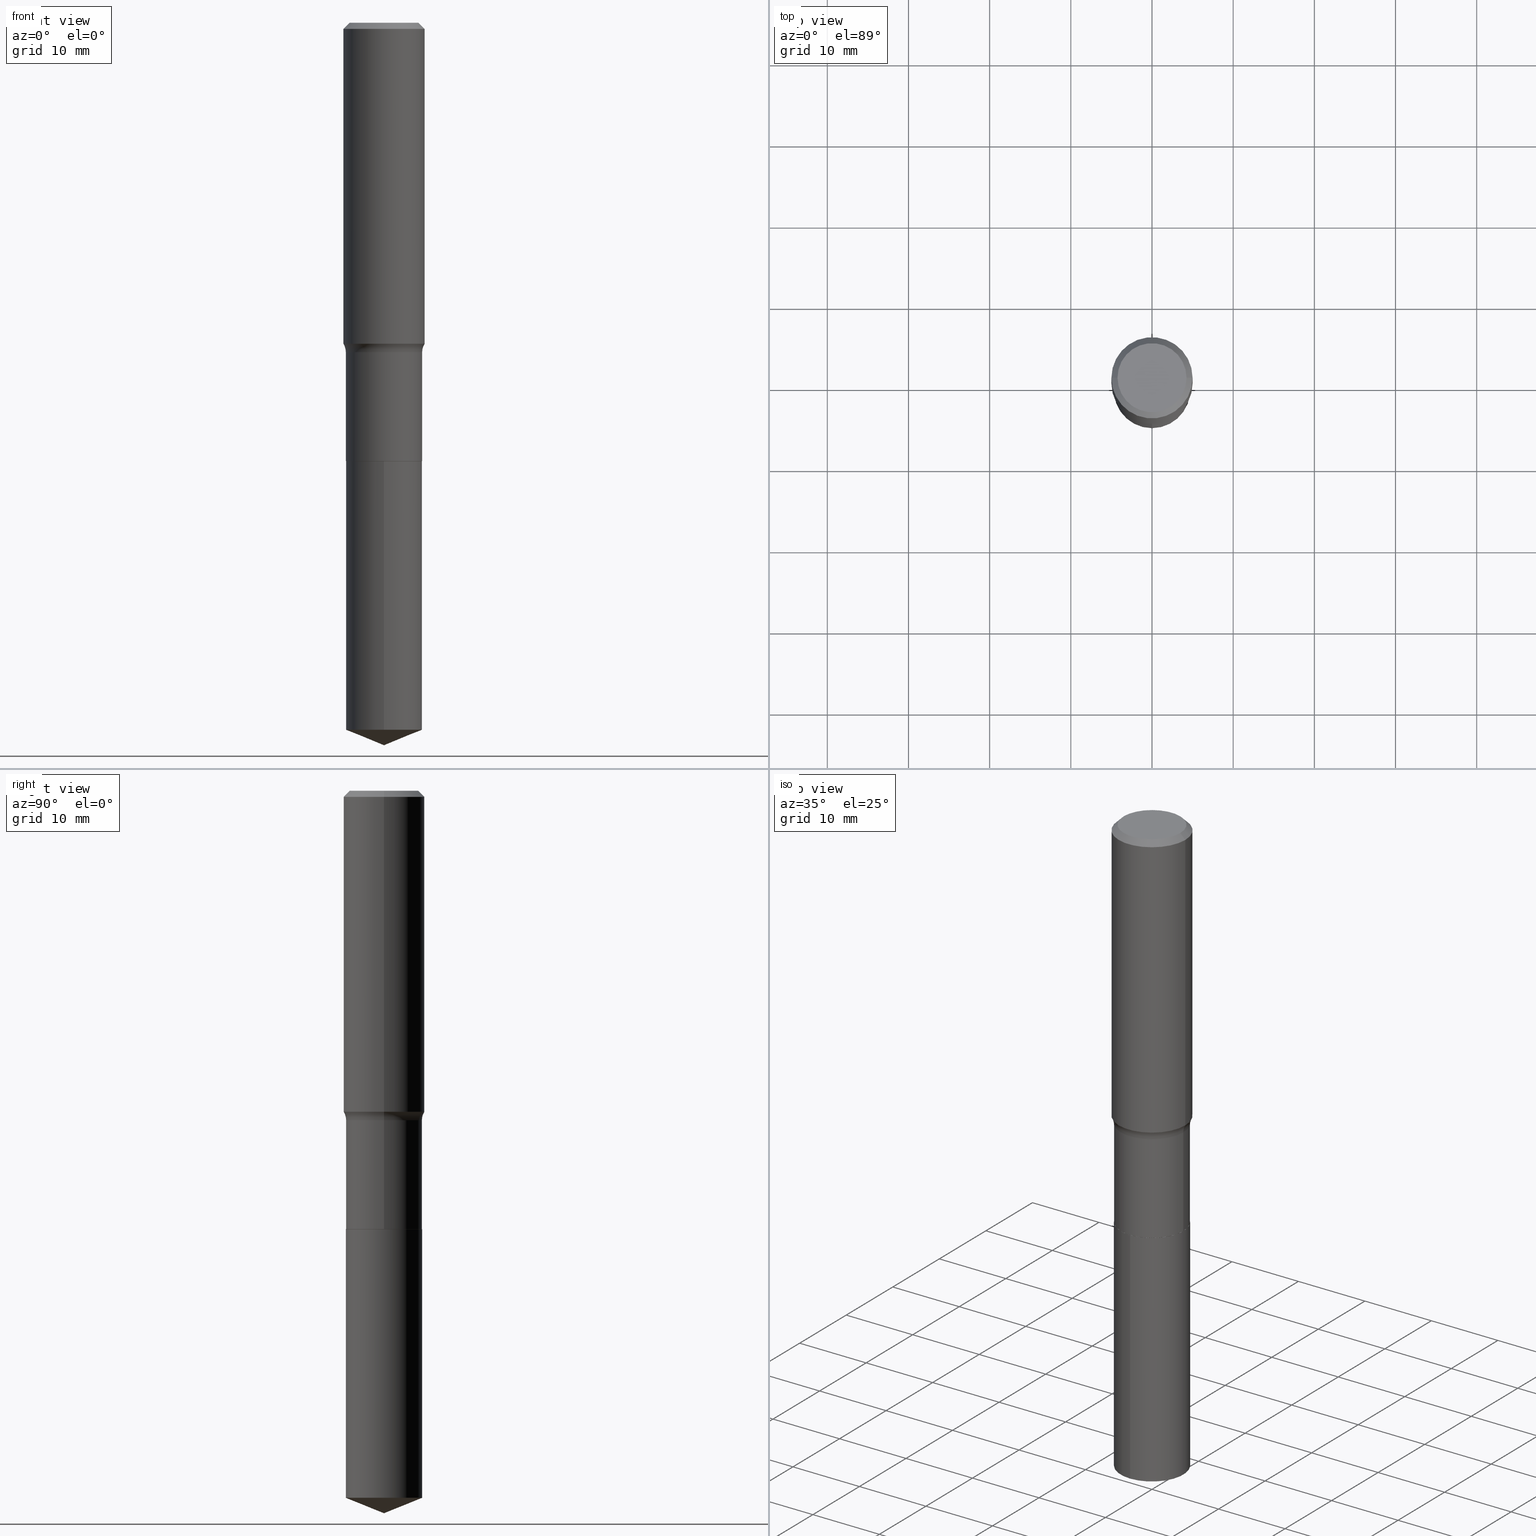
[diagram: canonical four-view strip — front | top / right | iso, engineering-drawing reading convention]
A machine part, canonical four-view strip (front | top / right | iso — engineering-drawing reading convention). The complete STEP part file that produces these views, byte-faithful:
ISO-10303-21;
HEADER;
FILE_DESCRIPTION (( 'STEP AP203' ),
    '1' );
FILE_NAME ('69184.STEP',
    '2024-04-19T17:20:25',
    ( '' ),
    ( '' ),
    'SwSTEP 2.0',
    'SolidWorks 2023',
    '' );
FILE_SCHEMA (( 'CONFIG_CONTROL_DESIGN' ));
ENDSEC;

DATA;
#1 = ORIENTED_EDGE ( 'NONE', *, *, #84, .F. ) ;
#2 = CIRCLE ( 'NONE', #366, 0.07799999999999999989 ) ;
#3 = CC_DESIGN_APPROVAL ( #16, ( #225 ) ) ;
#4 = CARTESIAN_POINT ( 'NONE',  ( 0.000000000000000000, 0.000000000000000000, 0.000000000000000000 ) ) ;
#5 = DIRECTION ( 'NONE',  ( -2.445468806185136597E-29, 3.491481338843145583E-15, 1.000000000000000000 ) ) ;
#6 = VERTEX_POINT ( 'NONE', #92 ) ;
#7 = CARTESIAN_POINT ( 'NONE',  ( 7.220858017463216492E-31, -1.030947152326917595E-16, -0.02952750000000022024 ) ) ;
#8 = CARTESIAN_POINT ( 'NONE',  ( 5.198822135068982087E-29, -7.422540178246643119E-15, -2.125899999999999679 ) ) ;
#9 = CIRCLE ( 'NONE', #337, 0.1968500000000000527 ) ;
#10 = AXIS2_PLACEMENT_3D ( 'NONE', #311, #161, #31 ) ;
#11 = LOCAL_TIME ( 13, 20, 25.00000000000000000, #17 ) ;
#12 = CYLINDRICAL_SURFACE ( 'NONE', #346, 0.1850499999999999368 ) ;
#13 = CARTESIAN_POINT ( 'NONE',  ( 8.385700175569454907E-29, -1.197296455644387141E-14, -3.429134946909204729 ) ) ;
#14 = DATE_AND_TIME ( #103, #110 ) ;
#15 = ORIENTED_EDGE ( 'NONE', *, *, #172, .T. ) ;
#16 = APPROVAL ( #290, 'UNSPECIFIED' ) ;
#17 = COORDINATED_UNIVERSAL_TIME_OFFSET ( 5, 0, .BEHIND. ) ;
#18 = CARTESIAN_POINT ( 'NONE',  ( -0.1850499999999999923, -5.185231476000217823E-15, -2.125399999999999956 ) ) ;
#19 = ADVANCED_FACE ( 'NONE', ( #420 ), #86, .T. ) ;
#20 = AXIS2_PLACEMENT_3D ( 'NONE', #317, #458, #88 ) ;
#21 = AXIS2_PLACEMENT_3D ( 'NONE', #385, #416, #32 ) ;
#22 = SHAPE_DEFINITION_REPRESENTATION ( #49, #30 ) ;
#23 = APPLICATION_CONTEXT ( 'configuration controlled 3d designs of mechanical parts and assemblies' ) ;
#24 = DIRECTION ( 'NONE',  ( -6.982962677686265133E-15, -1.000000000000000000, 3.498761904101797187E-15 ) ) ;
#25 = CARTESIAN_POINT ( 'NONE',  ( -5.008488096090108951E-47, 7.150793614331948590E-33, 2.048068690724054183E-18 ) ) ;
#26 = APPROVAL_DATE_TIME ( #214, #406 ) ;
#27 = DIRECTION ( 'NONE',  ( 6.982962677686265922E-15, 1.000000000000000000, -3.491637781037997457E-15 ) ) ;
#28 = AXIS2_PLACEMENT_3D ( 'NONE', #36, #347, #486 ) ;
#29 = FACE_OUTER_BOUND ( 'NONE', #467, .T. ) ;
#30 = ADVANCED_BREP_SHAPE_REPRESENTATION ( '69184', ( #315, #318, #476 ), #192 ) ;
#31 = DIRECTION ( 'NONE',  ( 1.000000000000000000, -6.982962677686265922E-15, 0.000000000000000000 ) ) ;
#32 = DIRECTION ( 'NONE',  ( 1.000000000000000000, -6.982962677686267499E-15, 4.876294436782262290E-29 ) ) ;
#33 = VECTOR ( 'NONE', #40, 39.37007874015748143 ) ;
#34 = DIRECTION ( 'NONE',  ( -6.982962677686265133E-15, -1.000000000000000000, 2.952551195530141356E-15 ) ) ;
#35 = ORIENTED_EDGE ( 'NONE', *, *, #485, .T. ) ;
#36 = CARTESIAN_POINT ( 'NONE',  ( 5.198822135068982087E-29, -7.422540178246643119E-15, -2.125899999999999679 ) ) ;
#37 = EDGE_CURVE ( 'NONE', #176, #419, #328, .T. ) ;
#38 = ORIENTED_EDGE ( 'NONE', *, *, #254, .T. ) ;
#39 = ADVANCED_FACE ( 'NONE', ( #430 ), #356, .T. ) ;
#40 = DIRECTION ( 'NONE',  ( -2.445468806185136877E-29, 3.491481338843145188E-15, 1.000000000000000000 ) ) ;
#41 = ORIENTED_EDGE ( 'NONE', *, *, #334, .T. ) ;
#42 = APPLICATION_PROTOCOL_DEFINITION ( 'international standard', 'config_control_design', 1994, #23 ) ;
#43 = DIRECTION ( 'NONE',  ( 1.000000000000000000, -6.982962677686265922E-15, 0.000000000000000000 ) ) ;
#44 = CONICAL_SURFACE ( 'NONE', #397, 0.1968500000000000527, 0.7853981633974456145 ) ;
#45 = CARTESIAN_POINT ( 'NONE',  ( 0.1968500000000001082, -1.374596203102542397E-15, 9.598753983154305062E-30 ) ) ;
#46 = EDGE_LOOP ( 'NONE', ( #124, #114 ) ) ;
#47 = VERTEX_POINT ( 'NONE', #167 ) ;
#48 = COORDINATED_UNIVERSAL_TIME_OFFSET ( 5, 0, .BEHIND. ) ;
#49 = PRODUCT_DEFINITION_SHAPE ( 'NONE', 'NONE',  #206 ) ;
#50 = ORIENTED_EDGE ( 'NONE', *, *, #239, .F. ) ;
#51 = APPROVAL_PERSON_ORGANIZATION ( #392, #149, #91 ) ;
#52 = DIRECTION ( 'NONE',  ( 1.000000000000000000, -6.982962677686265133E-15, 0.000000000000000000 ) ) ;
#53 = DIRECTION ( 'NONE',  ( 1.000000000000000000, -6.982962677686267499E-15, 4.876176775795935793E-29 ) ) ;
#54 = EDGE_CURVE ( 'NONE', #71, #198, #426, .T. ) ;
#55 = PERSON_AND_ORGANIZATION_ROLE ( 'creator' ) ;
#56 = FACE_OUTER_BOUND ( 'NONE', #196, .T. ) ;
#57 = SECURITY_CLASSIFICATION_LEVEL ( 'unclassified' ) ;
#58 = CARTESIAN_POINT ( 'NONE',  ( -0.1850499999999999090, -5.185231476000217823E-15, -1.597999999999999643 ) ) ;
#59 = CIRCLE ( 'NONE', #299, 0.1850499999999999090 ) ;
#60 = COORDINATED_UNIVERSAL_TIME_OFFSET ( 5, 0, .BEHIND. ) ;
#61 = CARTESIAN_POINT ( 'NONE',  ( 5.198822135068982087E-29, -7.422540178246643119E-15, -2.125899999999999679 ) ) ;
#62 = DATE_AND_TIME ( #471, #11 ) ;
#63 = DIRECTION ( 'NONE',  ( -6.982962677686265133E-15, -1.000000000000000000, 2.952551195530141356E-15 ) ) ;
#64 = APPROVAL_DATE_TIME ( #14, #16 ) ;
#65 = LINE ( 'NONE', #223, #289 ) ;
#66 = VECTOR ( 'NONE', #338, 39.37007874015748143 ) ;
#67 = AXIS2_PLACEMENT_3D ( 'NONE', #236, #480, #72 ) ;
#68 = CYLINDRICAL_SURFACE ( 'NONE', #216, 0.1968500000000001082 ) ;
#69 = VERTEX_POINT ( 'NONE', #281 ) ;
#70 = CARTESIAN_POINT ( 'NONE',  ( 5.197599400665889285E-29, -7.420794437577220826E-15, -2.125399999999999956 ) ) ;
#71 = VERTEX_POINT ( 'NONE', #246 ) ;
#72 = DIRECTION ( 'NONE',  ( 1.000000000000000000, -6.982962677686267499E-15, 0.000000000000000000 ) ) ;
#73 = ORIENTED_EDGE ( 'NONE', *, *, #259, .T. ) ;
#74 = AXIS2_PLACEMENT_3D ( 'NONE', #263, #407, #24 ) ;
#75 = CC_DESIGN_PERSON_AND_ORGANIZATION_ASSIGNMENT ( #170, #245, ( #107 ) ) ;
#76 = CIRCLE ( 'NONE', #321, 0.1850499999999999923 ) ;
#77 = DIRECTION ( 'NONE',  ( 1.000000000000000000, -6.982962677686266711E-15, 4.876176775795935793E-29 ) ) ;
#78 = LOCAL_TIME ( 13, 20, 25.00000000000000000, #60 ) ;
#79 = EDGE_LOOP ( 'NONE', ( #284, #448, #360, #1 ) ) ;
#80 = PERSON ( 'UNSPECIFIED', 'UNSPECIFIED', 'UNSPECIFIED', ('UNSPECIFIED'), ('UNSPECIFIED'), ('UNSPECIFIED') ) ;
#81 = EDGE_CURVE ( 'NONE', #386, #69, #441, .T. ) ;
#82 = CARTESIAN_POINT ( 'NONE',  ( 0.1673224999999999851, -1.300749711163072594E-15, 4.096137381456741925E-18 ) ) ;
#83 = ORIENTED_EDGE ( 'NONE', *, *, #291, .F. ) ;
#84 = EDGE_CURVE ( 'NONE', #69, #386, #9, .T. ) ;
#85 = DIRECTION ( 'NONE',  ( -2.445468806185136597E-29, 3.491481338843145583E-15, 1.000000000000000000 ) ) ;
#86 = CONICAL_SURFACE ( 'NONE', #274, 0.1845499999999999363, 0.7853981633975849475 ) ;
#87 = TOROIDAL_SURFACE ( 'NONE', #243, 0.2630499999999998950, 0.07800000000000002764 ) ;
#88 = DIRECTION ( 'NONE',  ( 1.000000000000000000, -6.982962677686266711E-15, 0.000000000000000000 ) ) ;
#89 = LOCAL_TIME ( 13, 20, 25.00000000000000000, #144 ) ;
#90 = DIRECTION ( 'NONE',  ( -0.7071067811866441621, 7.493145998870704414E-15, 0.7071067811864508723 ) ) ;
#91 = APPROVAL_ROLE ( '' ) ;
#92 = CARTESIAN_POINT ( 'NONE',  ( 0.1968500000000002470, -6.809959883149110592E-15, -1.556750030303040599 ) ) ;
#93 = CARTESIAN_POINT ( 'NONE',  ( 0.1845499999999999363, -8.711245940413642018E-15, -2.125899999999999679 ) ) ;
#94 = EDGE_LOOP ( 'NONE', ( #312, #209, #229, #450 ) ) ;
#95 = ADVANCED_FACE ( 'NONE', ( #205 ), #358, .T. ) ;
#96 = CONICAL_SURFACE ( 'NONE', #436, 0.1968500000000000527, 0.7853981633974456145 ) ;
#97 = ADVANCED_FACE ( 'NONE', ( #402 ), #479, .F. ) ;
#98 = DIRECTION ( 'NONE',  ( -2.445468806185136597E-29, 3.491481338843145583E-15, 1.000000000000000000 ) ) ;
#99 = APPLICATION_CONTEXT ( 'configuration controlled 3d designs of mechanical parts and assemblies' ) ;
#100 = CALENDAR_DATE ( 2024, 19, 4 ) ;
#101 = DIRECTION ( 'NONE',  ( -6.982962677686265133E-15, -1.000000000000000000, 3.498761904101797187E-15 ) ) ;
#102 = FACE_OUTER_BOUND ( 'NONE', #379, .T. ) ;
#103 = CALENDAR_DATE ( 2024, 19, 4 ) ;
#104 = FACE_OUTER_BOUND ( 'NONE', #387, .T. ) ;
#105 = PERSON_AND_ORGANIZATION ( #80, #275 ) ;
#106 = DIRECTION ( 'NONE',  ( -2.445359563184350382E-29, 3.491637781037997062E-15, 1.000000000000000000 ) ) ;
#107 = PRODUCT ( '69184', '69184', '', ( #355 ) ) ;
#108 = EDGE_CURVE ( 'NONE', #279, #345, #365, .T. ) ;
#109 = AXIS2_PLACEMENT_3D ( 'NONE', #188, #106, #340 ) ;
#110 = LOCAL_TIME ( 13, 20, 25.00000000000000000, #473 ) ;
#111 = CARTESIAN_POINT ( 'NONE',  ( 8.568295373441645346E-29, -1.223434962097903768E-14, -3.503899999999999793 ) ) ;
#112 = EDGE_LOOP ( 'NONE', ( #487, #152, #165 ) ) ;
#113 = FACE_OUTER_BOUND ( 'NONE', #413, .T. ) ;
#114 = ORIENTED_EDGE ( 'NONE', *, *, #108, .T. ) ;
#115 = ADVANCED_FACE ( 'NONE', ( #400 ), #282, .F. ) ;
#116 = CC_DESIGN_DATE_AND_TIME_ASSIGNMENT ( #477, #335, ( #206 ) ) ;
#117 = CARTESIAN_POINT ( 'NONE',  ( 8.568763925768371562E-29, -1.223368446005496745E-14, -3.503899999999999793 ) ) ;
#118 = ORIENTED_EDGE ( 'NONE', *, *, #422, .F. ) ;
#119 = ADVANCED_FACE ( 'NONE', ( #56 ), #433, .F. ) ;
#120 = AXIS2_PLACEMENT_3D ( 'NONE', #256, #98, #333 ) ;
#121 = DESIGN_CONTEXT ( 'detailed design', #99, 'design' ) ;
#122 = AXIS2_PLACEMENT_3D ( 'NONE', #449, #207, #457 ) ;
#123 = DIRECTION ( 'NONE',  ( 6.588037525764799179E-15, 0.9271838545667900888, 0.3746065934159051869 ) ) ;
#124 = ORIENTED_EDGE ( 'NONE', *, *, #271, .T. ) ;
#125 = ADVANCED_FACE ( 'NONE', ( #183 ), #297, .T. ) ;
#126 = DIRECTION ( 'NONE',  ( 0.7071067811865454633, -7.319954787623246579E-15, -0.7071067811865493491 ) ) ;
#127 = VERTEX_POINT ( 'NONE', #58 ) ;
#128 = DIRECTION ( 'NONE',  ( 1.000000000000000000, -6.982962677686265133E-15, 0.000000000000000000 ) ) ;
#129 = EDGE_LOOP ( 'NONE', ( #134, #415, #160, #452 ) ) ;
#130 = AXIS2_PLACEMENT_3D ( 'NONE', #478, #215, #101 ) ;
#131 = DIRECTION ( 'NONE',  ( 0.7071067811866441621, -2.468850131083269169E-15, 0.7071067811864508723 ) ) ;
#132 = ORIENTED_EDGE ( 'NONE', *, *, #422, .T. ) ;
#133 = CARTESIAN_POINT ( 'NONE',  ( -1.292197243505759076E-15, -0.1850500000000119827, -3.429134946909204285 ) ) ;
#134 = ORIENTED_EDGE ( 'NONE', *, *, #259, .F. ) ;
#135 = EDGE_CURVE ( 'NONE', #428, #6, #146, .T. ) ;
#136 = APPLICATION_PROTOCOL_DEFINITION ( 'international standard', 'config_control_design', 1994, #99 ) ;
#137 = ORIENTED_EDGE ( 'NONE', *, *, #173, .T. ) ;
#138 = ORIENTED_EDGE ( 'NONE', *, *, #331, .T. ) ;
#139 = CIRCLE ( 'NONE', #164, 0.07799999999999999989 ) ;
#140 = AXIS2_PLACEMENT_3D ( 'NONE', #411, #351, #265 ) ;
#141 = DIRECTION ( 'NONE',  ( 1.000000000000000000, -6.982962677686265922E-15, 0.000000000000000000 ) ) ;
#142 = APPROVAL_DATE_TIME ( #217, #149 ) ;
#143 = CARTESIAN_POINT ( 'NONE',  ( -0.1850499999999999368, 1.314859332524064945E-15, -9.102489384516700747E-30 ) ) ;
#144 = COORDINATED_UNIVERSAL_TIME_OFFSET ( 5, 0, .BEHIND. ) ;
#145 = LINE ( 'NONE', #298, #242 ) ;
#146 = CIRCLE ( 'NONE', #491, 0.1968500000000002192 ) ;
#147 = VECTOR ( 'NONE', #166, 39.37007874015748143 ) ;
#148 = FACE_OUTER_BOUND ( 'NONE', #231, .T. ) ;
#149 = APPROVAL ( #322, 'UNSPECIFIED' ) ;
#150 = CARTESIAN_POINT ( 'NONE',  ( -1.292197243505791420E-15, -0.1850500000000074030, -2.125899999999999235 ) ) ;
#151 = DIRECTION ( 'NONE',  ( 7.105427357601001859E-15, 1.000000000000000000, -3.491481338843145583E-15 ) ) ;
#152 = ORIENTED_EDGE ( 'NONE', *, *, #332, .T. ) ;
#153 = AXIS2_PLACEMENT_3D ( 'NONE', #8, #253, #63 ) ;
#154 = CONICAL_SURFACE ( 'NONE', #122, 0.1845499999999999363, 0.7853981633975849475 ) ;
#155 = DIMENSIONAL_EXPONENTS ( 1.000000000000000000, 0.000000000000000000, 0.000000000000000000, 0.000000000000000000, 0.000000000000000000, 0.000000000000000000, 0.000000000000000000 ) ;
#156 = ADVANCED_FACE ( 'NONE', ( #29 ), #344, .T. ) ;
#157 = DIRECTION ( 'NONE',  ( 1.000000000000000000, -6.982962677686265922E-15, 0.000000000000000000 ) ) ;
#158 = ORIENTED_EDGE ( 'NONE', *, *, #135, .F. ) ;
#159 = FACE_OUTER_BOUND ( 'NONE', #175, .T. ) ;
#160 = ORIENTED_EDGE ( 'NONE', *, *, #220, .T. ) ;
#161 = DIRECTION ( 'NONE',  ( -2.445468806185136597E-29, 3.491481338843145583E-15, 1.000000000000000000 ) ) ;
#162 = ORIENTED_EDGE ( 'NONE', *, *, #375, .T. ) ;
#163 = AXIS2_PLACEMENT_3D ( 'NONE', #61, #370, #27 ) ;
#164 = AXIS2_PLACEMENT_3D ( 'NONE', #293, #439, #372 ) ;
#165 = ORIENTED_EDGE ( 'NONE', *, *, #37, .F. ) ;
#166 = DIRECTION ( 'NONE',  ( -2.445468806185136877E-29, 3.491481338843145188E-15, 1.000000000000000000 ) ) ;
#167 = CARTESIAN_POINT ( 'NONE',  ( 1.314859332524149156E-15, 0.1850499999999925815, -2.125900000000000567 ) ) ;
#168 = DIRECTION ( 'NONE',  ( 0.000000000000000000, 0.000000000000000000, 1.000000000000000000 ) ) ;
#169 = ORIENTED_EDGE ( 'NONE', *, *, #438, .F. ) ;
#170 = PERSON_AND_ORGANIZATION ( #80, #275 ) ;
#171 = ORIENTED_EDGE ( 'NONE', *, *, #454, .T. ) ;
#172 = EDGE_CURVE ( 'NONE', #419, #350, #65, .T. ) ;
#173 = EDGE_CURVE ( 'NONE', #198, #127, #474, .T. ) ;
#174 = DIRECTION ( 'NONE',  ( -2.445468806185136597E-29, 3.491481338843145583E-15, 1.000000000000000000 ) ) ;
#175 = EDGE_LOOP ( 'NONE', ( #314, #456, #83, #118 ) ) ;
#176 = VERTEX_POINT ( 'NONE', #294 ) ;
#177 = PERSON_AND_ORGANIZATION ( #80, #275 ) ;
#178 = CARTESIAN_POINT ( 'NONE',  ( 7.220858017463216492E-31, -1.030947152326917595E-16, -0.02952750000000022024 ) ) ;
#179 = AXIS2_PLACEMENT_3D ( 'NONE', #483, #440, #189 ) ;
#180 = SECURITY_CLASSIFICATION ( '', '', #57 ) ;
#181 = DIRECTION ( 'NONE',  ( -2.445359563184350382E-29, 3.491637781037997457E-15, 1.000000000000000000 ) ) ;
#182 = PLANE ( 'NONE',  #353 ) ;
#183 = FACE_OUTER_BOUND ( 'NONE', #112, .T. ) ;
#184 = CC_DESIGN_PERSON_AND_ORGANIZATION_ASSIGNMENT ( #177, #55, ( #225 ) ) ;
#185 = LOCAL_TIME ( 13, 20, 25.00000000000000000, #48 ) ;
#186 = CC_DESIGN_DATE_AND_TIME_ASSIGNMENT ( #62, #260, ( #180 ) ) ;
#187 = ADVANCED_FACE ( 'NONE', ( #148 ), #182, .F. ) ;
#188 = CARTESIAN_POINT ( 'NONE',  ( 5.198822135068982087E-29, -7.422540178246643119E-15, -2.125899999999999679 ) ) ;
#189 = DIRECTION ( 'NONE',  ( -6.982962677686265133E-15, -1.000000000000000000, 2.952551195530141356E-15 ) ) ;
#190 = ORIENTED_EDGE ( 'NONE', *, *, #84, .T. ) ;
#191 = DIRECTION ( 'NONE',  ( -2.445468806185136597E-29, 3.491481338843145583E-15, 1.000000000000000000 ) ) ;
#192 =( GEOMETRIC_REPRESENTATION_CONTEXT ( 3 ) GLOBAL_UNCERTAINTY_ASSIGNED_CONTEXT ( ( #404 ) ) GLOBAL_UNIT_ASSIGNED_CONTEXT ( ( #490, #427, #459 ) ) REPRESENTATION_CONTEXT ( 'NONE', 'WORKASPACE' ) );
#193 = CARTESIAN_POINT ( 'NONE',  ( 0.1968500000000000527, -1.477690918335233688E-15, -0.02952750000000022024 ) ) ;
#194 = ORIENTED_EDGE ( 'NONE', *, *, #332, .F. ) ;
#195 = LINE ( 'NONE', #111, #462 ) ;
#196 = EDGE_LOOP ( 'NONE', ( #138, #251 ) ) ;
#197 = CARTESIAN_POINT ( 'NONE',  ( 5.198822135068982087E-29, -7.422540178246643119E-15, -2.125899999999999679 ) ) ;
#198 = VERTEX_POINT ( 'NONE', #18 ) ;
#199 = CC_DESIGN_PERSON_AND_ORGANIZATION_ASSIGNMENT ( #329, #212, ( #206 ) ) ;
#200 = CIRCLE ( 'NONE', #469, 0.1850499999999999090 ) ;
#201 = CARTESIAN_POINT ( 'NONE',  ( 0.1850499999999999090, -6.871584422977188194E-15, -1.597999999999999643 ) ) ;
#202 = DIRECTION ( 'NONE',  ( -6.982962677686265133E-15, -1.000000000000000000, 2.952551195530141356E-15 ) ) ;
#203 = ORIENTED_EDGE ( 'NONE', *, *, #54, .F. ) ;
#204 = LINE ( 'NONE', #93, #453 ) ;
#205 = FACE_OUTER_BOUND ( 'NONE', #342, .T. ) ;
#206 = PRODUCT_DEFINITION ( 'UNKNOWN', '', #225, #121 ) ;
#207 = DIRECTION ( 'NONE',  ( -2.445468806185136597E-29, 3.491481338843145583E-15, 1.000000000000000000 ) ) ;
#208 = CIRCLE ( 'NONE', #482, 0.1968500000000002192 ) ;
#209 = ORIENTED_EDGE ( 'NONE', *, *, #367, .T. ) ;
#210 = CARTESIAN_POINT ( 'NONE',  ( 3.907859152283848022E-29, -5.579387179471346287E-15, -1.597999999999999643 ) ) ;
#211 = ORIENTED_EDGE ( 'NONE', *, *, #331, .F. ) ;
#212 = PERSON_AND_ORGANIZATION_ROLE ( 'creator' ) ;
#213 = CARTESIAN_POINT ( 'NONE',  ( 3.806983638133851740E-29, -5.435363680046567406E-15, -1.556750030303040599 ) ) ;
#214 = DATE_AND_TIME ( #262, #89 ) ;
#215 = DIRECTION ( 'NONE',  ( -2.445359563184350382E-29, 3.491637781037997062E-15, 1.000000000000000000 ) ) ;
#216 = AXIS2_PLACEMENT_3D ( 'NONE', #377, #191, #77 ) ;
#217 = DATE_AND_TIME ( #100, #185 ) ;
#218 = DIRECTION ( 'NONE',  ( -1.000000000000000000, 6.982962677686266711E-15, 0.000000000000000000 ) ) ;
#219 = APPROVAL_STATUS ( 'not_yet_approved' ) ;
#220 = EDGE_CURVE ( 'NONE', #6, #481, #139, .T. ) ;
#221 = DIRECTION ( 'NONE',  ( 2.438088387897960049E-29, -3.491481338843145188E-15, -1.000000000000000000 ) ) ;
#222 = EDGE_CURVE ( 'NONE', #47, #350, #425, .T. ) ;
#223 = CARTESIAN_POINT ( 'NONE',  ( -1.292197243505791420E-15, -0.1850500000000074030, -2.125899999999999235 ) ) ;
#224 = CIRCLE ( 'NONE', #21, 0.1673224999999999851 ) ;
#225 = PRODUCT_DEFINITION_FORMATION_WITH_SPECIFIED_SOURCE ( 'ANY', '', #107, .NOT_KNOWN. ) ;
#226 = CYLINDRICAL_SURFACE ( 'NONE', #313, 0.1850499999999999923 ) ;
#227 = VERTEX_POINT ( 'NONE', #292 ) ;
#228 = DIRECTION ( 'NONE',  ( -2.445468806185136597E-29, 3.491481338843145583E-15, 1.000000000000000000 ) ) ;
#229 = ORIENTED_EDGE ( 'NONE', *, *, #81, .F. ) ;
#230 = DIRECTION ( 'NONE',  ( 1.000000000000000000, -6.982962677686267499E-15, 0.000000000000000000 ) ) ;
#231 = EDGE_LOOP ( 'NONE', ( #395, #320 ) ) ;
#232 = VECTOR ( 'NONE', #303, 39.37007874015748143 ) ;
#233 = CARTESIAN_POINT ( 'NONE',  ( 3.806983638133851740E-29, -5.435363680046567406E-15, -1.556750030303040599 ) ) ;
#234 = ADVANCED_FACE ( 'NONE', ( #102 ), #96, .T. ) ;
#235 = VERTEX_POINT ( 'NONE', #330 ) ;
#236 = CARTESIAN_POINT ( 'NONE',  ( 5.197599400665889285E-29, -7.420794437577220826E-15, -2.125399999999999956 ) ) ;
#237 = EDGE_CURVE ( 'NONE', #345, #69, #434, .T. ) ;
#238 = ORIENTED_EDGE ( 'NONE', *, *, #485, .F. ) ;
#239 = EDGE_CURVE ( 'NONE', #176, #47, #145, .T. ) ;
#240 = EDGE_LOOP ( 'NONE', ( #354, #137, #169, #489 ) ) ;
#241 = ADVANCED_FACE ( 'NONE', ( #104 ), #226, .T. ) ;
#242 = VECTOR ( 'NONE', #437, 39.37007874015748143 ) ;
#243 = AXIS2_PLACEMENT_3D ( 'NONE', #414, #382, #302 ) ;
#244 = CARTESIAN_POINT ( 'NONE',  ( 0.000000000000000000, 0.000000000000000000, 0.000000000000000000 ) ) ;
#245 = PERSON_AND_ORGANIZATION_ROLE ( 'design_owner' ) ;
#246 = CARTESIAN_POINT ( 'NONE',  ( -0.1845499999999999363, -6.108584332227267083E-15, -2.125899999999999679 ) ) ;
#247 = LINE ( 'NONE', #423, #266 ) ;
#248 = CARTESIAN_POINT ( 'NONE',  ( 7.220858017463216492E-31, -1.030947152326917595E-16, -0.02952750000000022024 ) ) ;
#249 = FACE_OUTER_BOUND ( 'NONE', #240, .T. ) ;
#250 = AXIS2_PLACEMENT_3D ( 'NONE', #408, #269, #34 ) ;
#251 = ORIENTED_EDGE ( 'NONE', *, *, #222, .T. ) ;
#252 = APPROVAL_PERSON_ORGANIZATION ( #466, #406, #432 ) ;
#253 = DIRECTION ( 'NONE',  ( -2.445359563184350382E-29, 3.491637781037997062E-15, 1.000000000000000000 ) ) ;
#254 = EDGE_CURVE ( 'NONE', #446, #481, #341, .T. ) ;
#255 = PERSON_AND_ORGANIZATION_ROLE ( 'design_supplier' ) ;
#256 = CARTESIAN_POINT ( 'NONE',  ( -1.001697619218021790E-46, 1.430158722866389718E-32, 4.096137381448108366E-18 ) ) ;
#257 = DIRECTION ( 'NONE',  ( 2.445468806185136597E-29, -3.491481338843145583E-15, -1.000000000000000000 ) ) ;
#258 = VECTOR ( 'NONE', #336, 39.37007874015748854 ) ;
#259 = EDGE_CURVE ( 'NONE', #428, #127, #2, .T. ) ;
#260 = DATE_TIME_ROLE ( 'classification_date' ) ;
#261 = DIRECTION ( 'NONE',  ( -2.445468806185136597E-29, 3.491481338843145583E-15, 1.000000000000000000 ) ) ;
#262 = CALENDAR_DATE ( 2024, 19, 4 ) ;
#263 = CARTESIAN_POINT ( 'NONE',  ( -8.770547093742795597E-28, 1.252320373310577024E-13, 35.86617874015747987 ) ) ;
#264 = EDGE_CURVE ( 'NONE', #227, #176, #276, .T. ) ;
#265 = DIRECTION ( 'NONE',  ( 1.000000000000000000, -6.982962677686266711E-15, 4.876176775795935793E-29 ) ) ;
#266 = VECTOR ( 'NONE', #126, 39.37007874015748854 ) ;
#267 = DIRECTION ( 'NONE',  ( -6.474490251793185729E-15, -0.9271838545667875353, 0.3746065934159116817 ) ) ;
#268 = ORIENTED_EDGE ( 'NONE', *, *, #220, .F. ) ;
#269 = DIRECTION ( 'NONE',  ( -2.445359563184350382E-29, 3.491637781037997062E-15, 1.000000000000000000 ) ) ;
#270 = ORIENTED_EDGE ( 'NONE', *, *, #239, .T. ) ;
#271 = EDGE_CURVE ( 'NONE', #345, #279, #224, .T. ) ;
#272 = DIRECTION ( 'NONE',  ( -2.445359563184350382E-29, 3.491637781037997062E-15, 1.000000000000000000 ) ) ;
#273 = ORIENTED_EDGE ( 'NONE', *, *, #264, .T. ) ;
#274 = AXIS2_PLACEMENT_3D ( 'NONE', #399, #85, #43 ) ;
#275 = ORGANIZATION ( 'UNSPECIFIED', 'UNSPECIFIED', '' ) ;
#276 = LINE ( 'NONE', #117, #383 ) ;
#277 = ADVANCED_FACE ( 'NONE', ( #378 ), #68, .T. ) ;
#278 = EDGE_LOOP ( 'NONE', ( #304, #460, #348, #190 ) ) ;
#279 = VERTEX_POINT ( 'NONE', #82 ) ;
#280 = DIRECTION ( 'NONE',  ( -1.000000000000000000, 6.982962677686266711E-15, 0.000000000000000000 ) ) ;
#281 = CARTESIAN_POINT ( 'NONE',  ( -0.1968500000000000527, -1.370525822295871364E-15, -0.02952750000000022024 ) ) ;
#282 = TOROIDAL_SURFACE ( 'NONE', #396, 0.2630499999999998950, 0.07800000000000002764 ) ;
#283 = DIRECTION ( 'NONE',  ( 1.000000000000000000, -6.982962677686267499E-15, 4.876176775795935793E-29 ) ) ;
#284 = ORIENTED_EDGE ( 'NONE', *, *, #367, .F. ) ;
#285 = DIRECTION ( 'NONE',  ( -2.445468806185136597E-29, 3.491481338843145583E-15, 1.000000000000000000 ) ) ;
#286 = ORIENTED_EDGE ( 'NONE', *, *, #237, .F. ) ;
#287 = CARTESIAN_POINT ( 'NONE',  ( -0.1968500000000002470, -4.036660304702808830E-15, -1.556750030303040599 ) ) ;
#288 = EDGE_LOOP ( 'NONE', ( #203, #41, #132, #307 ) ) ;
#289 = VECTOR ( 'NONE', #181, 39.37007874015748143 ) ;
#290 = APPROVAL_STATUS ( 'not_yet_approved' ) ;
#291 = EDGE_CURVE ( 'NONE', #446, #198, #389, .T. ) ;
#292 = CARTESIAN_POINT ( 'NONE',  ( 8.568295373441645346E-29, -1.223434962097903768E-14, -3.503899999999999793 ) ) ;
#293 = CARTESIAN_POINT ( 'NONE',  ( 0.2630499999999998950, -7.416255511836717817E-15, -1.597999999999999643 ) ) ;
#294 = CARTESIAN_POINT ( 'NONE',  ( 1.314859332524148958E-15, 0.1850499999999879741, -3.429134946909205173 ) ) ;
#295 = CC_DESIGN_PERSON_AND_ORGANIZATION_ASSIGNMENT ( #105, #296, ( #180 ) ) ;
#296 = PERSON_AND_ORGANIZATION_ROLE ( 'classification_officer' ) ;
#297 = CONICAL_SURFACE ( 'NONE', #74, 97.44436430772927338, 1.186823891356147964 ) ;
#298 = CARTESIAN_POINT ( 'NONE',  ( 1.314859332524117009E-15, 0.1850499999999925815, -2.125900000000000567 ) ) ;
#299 = AXIS2_PLACEMENT_3D ( 'NONE', #210, #285, #128 ) ;
#300 = APPROVAL_ROLE ( '' ) ;
#301 = CARTESIAN_POINT ( 'NONE',  ( 5.198822135068982087E-29, -7.422540178246643119E-15, -2.125899999999999679 ) ) ;
#302 = DIRECTION ( 'NONE',  ( 1.000000000000000000, -6.982962677686267499E-15, 4.883557194083114022E-29 ) ) ;
#303 = DIRECTION ( 'NONE',  ( -2.445468806185136877E-29, 3.491481338843145188E-15, 1.000000000000000000 ) ) ;
#304 = ORIENTED_EDGE ( 'NONE', *, *, #454, .F. ) ;
#305 = CIRCLE ( 'NONE', #179, 0.1850499999999999923 ) ;
#306 = CARTESIAN_POINT ( 'NONE',  ( -0.1968500000000001082, 1.398703375343757985E-15, -9.682923725166787881E-30 ) ) ;
#307 = ORIENTED_EDGE ( 'NONE', *, *, #375, .F. ) ;
#308 = LINE ( 'NONE', #306, #232 ) ;
#309 = ORIENTED_EDGE ( 'NONE', *, *, #108, .F. ) ;
#310 = ADVANCED_FACE ( 'NONE', ( #443 ), #343, .T. ) ;
#311 = CARTESIAN_POINT ( 'NONE',  ( 5.198822135068982087E-29, -7.422540178246643119E-15, -2.125899999999999679 ) ) ;
#312 = ORIENTED_EDGE ( 'NONE', *, *, #361, .T. ) ;
#313 = AXIS2_PLACEMENT_3D ( 'NONE', #197, #272, #418 ) ;
#314 = ORIENTED_EDGE ( 'NONE', *, *, #410, .T. ) ;
#315 = MANIFOLD_SOLID_BREP ( 'Body-Move/Copy2[1]', #461 ) ;
#316 = DIRECTION ( 'NONE',  ( 2.445468806185136597E-29, -3.491481338843145583E-15, -1.000000000000000000 ) ) ;
#317 = CARTESIAN_POINT ( 'NONE',  ( 7.220858017463216492E-31, -1.030947152326917595E-16, -0.02952750000000022024 ) ) ;
#318 = MANIFOLD_SOLID_BREP ( 'Body-Move/Copy2[2]', #468 ) ;
#319 = DIRECTION ( 'NONE',  ( 1.000000000000000000, 0.000000000000000000, 0.000000000000000000 ) ) ;
#320 = ORIENTED_EDGE ( 'NONE', *, *, #334, .F. ) ;
#321 = AXIS2_PLACEMENT_3D ( 'NONE', #70, #228, #230 ) ;
#322 = APPROVAL_STATUS ( 'not_yet_approved' ) ;
#323 = ORIENTED_EDGE ( 'NONE', *, *, #381, .F. ) ;
#324 = LINE ( 'NONE', #45, #147 ) ;
#325 = DIRECTION ( 'NONE',  ( -2.445359563184350382E-29, 3.491637781037997062E-15, 1.000000000000000000 ) ) ;
#326 = PERSON_AND_ORGANIZATION ( #80, #275 ) ;
#327 = ORIENTED_EDGE ( 'NONE', *, *, #172, .F. ) ;
#328 = CIRCLE ( 'NONE', #388, 0.1850499999999999923 ) ;
#329 = PERSON_AND_ORGANIZATION ( #80, #275 ) ;
#330 = CARTESIAN_POINT ( 'NONE',  ( 0.1845499999999999363, -8.711245940413642018E-15, -2.125899999999999679 ) ) ;
#331 = EDGE_CURVE ( 'NONE', #350, #47, #305, .T. ) ;
#332 = EDGE_CURVE ( 'NONE', #227, #419, #195, .T. ) ;
#333 = DIRECTION ( 'NONE',  ( 1.000000000000000000, -6.982962677686267499E-15, 4.876294436782262290E-29 ) ) ;
#334 = EDGE_CURVE ( 'NONE', #71, #235, #444, .T. ) ;
#335 = DATE_TIME_ROLE ( 'creation_date' ) ;
#336 = DIRECTION ( 'NONE',  ( -0.7071067811865454633, 2.468850131082235761E-15, -0.7071067811865493491 ) ) ;
#337 = AXIS2_PLACEMENT_3D ( 'NONE', #248, #393, #465 ) ;
#338 = DIRECTION ( 'NONE',  ( -2.445468806185136877E-29, 3.491481338843145188E-15, 1.000000000000000000 ) ) ;
#339 = CIRCLE ( 'NONE', #28, 0.1845499999999999363 ) ;
#340 = DIRECTION ( 'NONE',  ( -6.982962677686265133E-15, -1.000000000000000000, 2.952551195530141356E-15 ) ) ;
#341 = LINE ( 'NONE', #349, #33 ) ;
#342 = EDGE_LOOP ( 'NONE', ( #50, #391, #15, #362 ) ) ;
#343 = CYLINDRICAL_SURFACE ( 'NONE', #140, 0.1968500000000001082 ) ;
#344 = CONICAL_SURFACE ( 'NONE', #130, 97.44436430772927338, 1.186823891356147964 ) ;
#345 = VERTEX_POINT ( 'NONE', #451 ) ;
#346 = AXIS2_PLACEMENT_3D ( 'NONE', #398, #174, #283 ) ;
#347 = DIRECTION ( 'NONE',  ( -2.445468806185136597E-29, 3.491481338843145583E-15, 1.000000000000000000 ) ) ;
#348 = ORIENTED_EDGE ( 'NONE', *, *, #237, .T. ) ;
#349 = CARTESIAN_POINT ( 'NONE',  ( 0.1850499999999999368, -1.292197243505843287E-15, 9.023365123610376264E-30 ) ) ;
#350 = VERTEX_POINT ( 'NONE', #150 ) ;
#351 = DIRECTION ( 'NONE',  ( -2.445468806185136597E-29, 3.491481338843145583E-15, 1.000000000000000000 ) ) ;
#352 = ORIENTED_EDGE ( 'NONE', *, *, #381, .T. ) ;
#353 = AXIS2_PLACEMENT_3D ( 'NONE', #301, #435, #364 ) ;
#354 = ORIENTED_EDGE ( 'NONE', *, *, #291, .T. ) ;
#355 = MECHANICAL_CONTEXT ( 'NONE', #23, 'mechanical' ) ;
#356 = CYLINDRICAL_SURFACE ( 'NONE', #442, 0.1850499999999999368 ) ;
#357 =( LENGTH_UNIT ( ) NAMED_UNIT ( * ) SI_UNIT ( $, .METRE. ) );
#358 = CYLINDRICAL_SURFACE ( 'NONE', #153, 0.1850499999999999923 ) ;
#359 = FACE_OUTER_BOUND ( 'NONE', #278, .T. ) ;
#360 = ORIENTED_EDGE ( 'NONE', *, *, #492, .T. ) ;
#361 = EDGE_CURVE ( 'NONE', #6, #428, #208, .T. ) ;
#362 = ORIENTED_EDGE ( 'NONE', *, *, #222, .F. ) ;
#363 = PERSON_AND_ORGANIZATION ( #80, #275 ) ;
#364 = DIRECTION ( 'NONE',  ( 1.000000000000000000, -6.982962677686265922E-15, 4.876176775795935793E-29 ) ) ;
#365 = CIRCLE ( 'NONE', #120, 0.1673224999999999851 ) ;
#366 = AXIS2_PLACEMENT_3D ( 'NONE', #447, #151, #488 ) ;
#367 = EDGE_CURVE ( 'NONE', #428, #69, #308, .T. ) ;
#368 = CC_DESIGN_APPROVAL ( #406, ( #180 ) ) ;
#369 = CARTESIAN_POINT ( 'NONE',  ( -0.1968500000000000527, 1.271501487869850317E-15, -0.02952750000000022024 ) ) ;
#370 = DIRECTION ( 'NONE',  ( 2.445359563184349822E-29, -3.491637781037997457E-15, -1.000000000000000000 ) ) ;
#371 = AXIS2_PLACEMENT_3D ( 'NONE', #25, #221, #470 ) ;
#372 = DIRECTION ( 'NONE',  ( 1.000000000000000000, -6.982962677686270655E-15, 0.000000000000000000 ) ) ;
#373 = CC_DESIGN_APPROVAL ( #149, ( #206 ) ) ;
#374 = CC_DESIGN_SECURITY_CLASSIFICATION ( #180, ( #225 ) ) ;
#375 = EDGE_CURVE ( 'NONE', #198, #446, #76, .T. ) ;
#376 = CC_DESIGN_PERSON_AND_ORGANIZATION_ASSIGNMENT ( #363, #255, ( #225 ) ) ;
#377 = CARTESIAN_POINT ( 'NONE',  ( 0.000000000000000000, 0.000000000000000000, 0.000000000000000000 ) ) ;
#378 = FACE_OUTER_BOUND ( 'NONE', #94, .T. ) ;
#379 = EDGE_LOOP ( 'NONE', ( #309, #171, #484, #286 ) ) ;
#380 = ADVANCED_FACE ( 'NONE', ( #113 ), #87, .F. ) ;
#381 = EDGE_CURVE ( 'NONE', #419, #176, #409, .T. ) ;
#382 = DIRECTION ( 'NONE',  ( -2.445468806185136597E-29, 3.491481338843145583E-15, 1.000000000000000000 ) ) ;
#383 = VECTOR ( 'NONE', #123, 39.37007874015748854 ) ;
#384 = DIRECTION ( 'NONE',  ( -2.445468806185136597E-29, 3.491481338843145583E-15, 1.000000000000000000 ) ) ;
#385 = CARTESIAN_POINT ( 'NONE',  ( -1.001697619218021790E-46, 1.430158722866389718E-32, 4.096137381448108366E-18 ) ) ;
#386 = VERTEX_POINT ( 'NONE', #193 ) ;
#387 = EDGE_LOOP ( 'NONE', ( #352, #270, #211, #327 ) ) ;
#388 = AXIS2_PLACEMENT_3D ( 'NONE', #13, #325, #202 ) ;
#389 = CIRCLE ( 'NONE', #67, 0.1850499999999999923 ) ;
#390 = LENGTH_MEASURE_WITH_UNIT ( LENGTH_MEASURE( 0.02539999999999999897 ), #357 );
#391 = ORIENTED_EDGE ( 'NONE', *, *, #37, .T. ) ;
#392 = PERSON_AND_ORGANIZATION ( #80, #275 ) ;
#393 = DIRECTION ( 'NONE',  ( -2.445468806185136597E-29, 3.491481338843145583E-15, 1.000000000000000000 ) ) ;
#394 = CARTESIAN_POINT ( 'NONE',  ( 3.907859152283848022E-29, -5.579387179471346287E-15, -1.597999999999999643 ) ) ;
#395 = ORIENTED_EDGE ( 'NONE', *, *, #410, .F. ) ;
#396 = AXIS2_PLACEMENT_3D ( 'NONE', #403, #261, #405 ) ;
#397 = AXIS2_PLACEMENT_3D ( 'NONE', #7, #316, #280 ) ;
#398 = CARTESIAN_POINT ( 'NONE',  ( 0.000000000000000000, 0.000000000000000000, 0.000000000000000000 ) ) ;
#399 = CARTESIAN_POINT ( 'NONE',  ( 5.198822135068982087E-29, -7.422540178246643119E-15, -2.125899999999999679 ) ) ;
#400 = FACE_OUTER_BOUND ( 'NONE', #129, .T. ) ;
#401 = CALENDAR_DATE ( 2024, 19, 4 ) ;
#402 = FACE_OUTER_BOUND ( 'NONE', #46, .T. ) ;
#403 = CARTESIAN_POINT ( 'NONE',  ( 3.907859152283848022E-29, -5.579387179471346287E-15, -1.597999999999999643 ) ) ;
#404 = UNCERTAINTY_MEASURE_WITH_UNIT (LENGTH_MEASURE( 1.000000000000000082E-05 ), #490, 'distance_accuracy_value', 'NONE');
#405 = DIRECTION ( 'NONE',  ( 1.000000000000000000, -6.982962677686267499E-15, 4.883557194083114022E-29 ) ) ;
#406 = APPROVAL ( #219, 'UNSPECIFIED' ) ;
#407 = DIRECTION ( 'NONE',  ( -2.445359563184350382E-29, 3.491637781037997062E-15, 1.000000000000000000 ) ) ;
#408 = CARTESIAN_POINT ( 'NONE',  ( 8.385700175569454907E-29, -1.197296455644387141E-14, -3.429134946909204729 ) ) ;
#409 = CIRCLE ( 'NONE', #250, 0.1850499999999999923 ) ;
#410 = EDGE_CURVE ( 'NONE', #235, #71, #339, .T. ) ;
#411 = CARTESIAN_POINT ( 'NONE',  ( 0.000000000000000000, 0.000000000000000000, 0.000000000000000000 ) ) ;
#412 = ADVANCED_FACE ( 'NONE', ( #159 ), #154, .T. ) ;
#413 = EDGE_LOOP ( 'NONE', ( #158, #73, #35, #268 ) ) ;
#414 = CARTESIAN_POINT ( 'NONE',  ( 3.907859152283848022E-29, -5.579387179471346287E-15, -1.597999999999999643 ) ) ;
#415 = ORIENTED_EDGE ( 'NONE', *, *, #361, .F. ) ;
#416 = DIRECTION ( 'NONE',  ( -2.445468806185136597E-29, 3.491481338843145583E-15, 1.000000000000000000 ) ) ;
#417 = EDGE_LOOP ( 'NONE', ( #464, #162, #38, #238 ) ) ;
#418 = DIRECTION ( 'NONE',  ( -6.982962677686265133E-15, -1.000000000000000000, 2.952551195530141356E-15 ) ) ;
#419 = VERTEX_POINT ( 'NONE', #133 ) ;
#420 = FACE_OUTER_BOUND ( 'NONE', #288, .T. ) ;
#421 = PRODUCT_RELATED_PRODUCT_CATEGORY ( 'detail', '', ( #107 ) ) ;
#422 = EDGE_CURVE ( 'NONE', #235, #446, #204, .T. ) ;
#423 = CARTESIAN_POINT ( 'NONE',  ( 0.1968500000000000527, -1.453583746094018101E-15, -0.02952750000000022024 ) ) ;
#424 = CARTESIAN_POINT ( 'NONE',  ( -0.1845499999999999363, -6.111233559401378284E-15, -2.125899999999999679 ) ) ;
#425 = CIRCLE ( 'NONE', #109, 0.1850499999999999923 ) ;
#426 = LINE ( 'NONE', #424, #431 ) ;
#427 =( NAMED_UNIT ( * ) PLANE_ANGLE_UNIT ( ) SI_UNIT ( $, .RADIAN. ) );
#428 = VERTEX_POINT ( 'NONE', #287 ) ;
#429 = DIRECTION ( 'NONE',  ( -2.445468806185136597E-29, 3.491481338843145583E-15, 1.000000000000000000 ) ) ;
#430 = FACE_OUTER_BOUND ( 'NONE', #417, .T. ) ;
#431 = VECTOR ( 'NONE', #90, 39.37007874015748143 ) ;
#432 = APPROVAL_ROLE ( '' ) ;
#433 = PLANE ( 'NONE',  #163 ) ;
#434 = LINE ( 'NONE', #369, #258 ) ;
#435 = DIRECTION ( 'NONE',  ( -2.438088387897960049E-29, 3.491481338843145188E-15, 1.000000000000000000 ) ) ;
#436 = AXIS2_PLACEMENT_3D ( 'NONE', #178, #257, #218 ) ;
#437 = DIRECTION ( 'NONE',  ( -2.445359563184350382E-29, 3.491637781037997457E-15, 1.000000000000000000 ) ) ;
#438 = EDGE_CURVE ( 'NONE', #481, #127, #200, .T. ) ;
#439 = DIRECTION ( 'NONE',  ( -6.982962677686266711E-15, -1.000000000000000000, 3.491481338843145583E-15 ) ) ;
#440 = DIRECTION ( 'NONE',  ( -2.445359563184350382E-29, 3.491637781037997062E-15, 1.000000000000000000 ) ) ;
#441 = CIRCLE ( 'NONE', #20, 0.1968500000000000527 ) ;
#442 = AXIS2_PLACEMENT_3D ( 'NONE', #244, #5, #53 ) ;
#443 = FACE_OUTER_BOUND ( 'NONE', #79, .T. ) ;
#444 = CIRCLE ( 'NONE', #10, 0.1845499999999999363 ) ;
#445 = APPROVAL_PERSON_ORGANIZATION ( #326, #16, #300 ) ;
#446 = VERTEX_POINT ( 'NONE', #463 ) ;
#447 = CARTESIAN_POINT ( 'NONE',  ( -0.2630499999999998950, -3.710304513054402705E-15, -1.597999999999999643 ) ) ;
#448 = ORIENTED_EDGE ( 'NONE', *, *, #135, .T. ) ;
#449 = CARTESIAN_POINT ( 'NONE',  ( 5.198822135068982087E-29, -7.422540178246643119E-15, -2.125899999999999679 ) ) ;
#450 = ORIENTED_EDGE ( 'NONE', *, *, #492, .F. ) ;
#451 = CARTESIAN_POINT ( 'NONE',  ( -0.1673224999999999851, 1.219954130253505460E-15, 4.096137381439757534E-18 ) ) ;
#452 = ORIENTED_EDGE ( 'NONE', *, *, #438, .T. ) ;
#453 = VECTOR ( 'NONE', #131, 39.37007874015748143 ) ;
#454 = EDGE_CURVE ( 'NONE', #279, #386, #247, .T. ) ;
#455 = ADVANCED_FACE ( 'NONE', ( #359 ), #44, .T. ) ;
#456 = ORIENTED_EDGE ( 'NONE', *, *, #54, .T. ) ;
#457 = DIRECTION ( 'NONE',  ( 1.000000000000000000, -6.982962677686265922E-15, 0.000000000000000000 ) ) ;
#458 = DIRECTION ( 'NONE',  ( -2.445468806185136597E-29, 3.491481338843145583E-15, 1.000000000000000000 ) ) ;
#459 =( NAMED_UNIT ( * ) SI_UNIT ( $, .STERADIAN. ) SOLID_ANGLE_UNIT ( ) );
#460 = ORIENTED_EDGE ( 'NONE', *, *, #271, .F. ) ;
#461 = CLOSED_SHELL ( 'NONE', ( #241, #156, #125, #95, #119 ) ) ;
#462 = VECTOR ( 'NONE', #267, 39.37007874015748143 ) ;
#463 = CARTESIAN_POINT ( 'NONE',  ( 0.1850499999999999923, -8.712991681083064311E-15, -2.125399999999999956 ) ) ;
#464 = ORIENTED_EDGE ( 'NONE', *, *, #173, .F. ) ;
#465 = DIRECTION ( 'NONE',  ( 1.000000000000000000, -6.982962677686266711E-15, 0.000000000000000000 ) ) ;
#466 = PERSON_AND_ORGANIZATION ( #80, #275 ) ;
#467 = EDGE_LOOP ( 'NONE', ( #194, #273, #323 ) ) ;
#468 = CLOSED_SHELL ( 'NONE', ( #412, #234, #277, #380, #475, #39, #115, #310, #455, #97, #187, #19 ) ) ;
#469 = AXIS2_PLACEMENT_3D ( 'NONE', #394, #429, #52 ) ;
#470 = DIRECTION ( 'NONE',  ( -1.000000000000000000, 6.982962677686265922E-15, -4.876176775795935793E-29 ) ) ;
#471 = CALENDAR_DATE ( 2024, 19, 4 ) ;
#472 = DIRECTION ( 'NONE',  ( -2.445468806185136597E-29, 3.491481338843145583E-15, 1.000000000000000000 ) ) ;
#473 = COORDINATED_UNIVERSAL_TIME_OFFSET ( 5, 0, .BEHIND. ) ;
#474 = LINE ( 'NONE', #143, #66 ) ;
#475 = ADVANCED_FACE ( 'NONE', ( #249 ), #12, .T. ) ;
#476 = AXIS2_PLACEMENT_3D ( 'NONE', #4, #168, #319 ) ;
#477 = DATE_AND_TIME ( #401, #78 ) ;
#478 = CARTESIAN_POINT ( 'NONE',  ( -8.770547093742795597E-28, 1.252320373310577024E-13, 35.86617874015747987 ) ) ;
#479 = PLANE ( 'NONE',  #371 ) ;
#480 = DIRECTION ( 'NONE',  ( -2.445468806185136597E-29, 3.491481338843145583E-15, 1.000000000000000000 ) ) ;
#481 = VERTEX_POINT ( 'NONE', #201 ) ;
#482 = AXIS2_PLACEMENT_3D ( 'NONE', #233, #384, #157 ) ;
#483 = CARTESIAN_POINT ( 'NONE',  ( 5.198822135068982087E-29, -7.422540178246643119E-15, -2.125899999999999679 ) ) ;
#484 = ORIENTED_EDGE ( 'NONE', *, *, #81, .T. ) ;
#485 = EDGE_CURVE ( 'NONE', #127, #481, #59, .T. ) ;
#486 = DIRECTION ( 'NONE',  ( 1.000000000000000000, -6.982962677686265922E-15, 0.000000000000000000 ) ) ;
#487 = ORIENTED_EDGE ( 'NONE', *, *, #264, .F. ) ;
#488 = DIRECTION ( 'NONE',  ( -1.000000000000000000, 7.105427357601005014E-15, 0.000000000000000000 ) ) ;
#489 = ORIENTED_EDGE ( 'NONE', *, *, #254, .F. ) ;
#490 =( CONVERSION_BASED_UNIT ( 'INCH', #390 ) LENGTH_UNIT ( ) NAMED_UNIT ( #155 ) );
#491 = AXIS2_PLACEMENT_3D ( 'NONE', #213, #472, #141 ) ;
#492 = EDGE_CURVE ( 'NONE', #6, #386, #324, .T. ) ;
ENDSEC;
END-ISO-10303-21;
